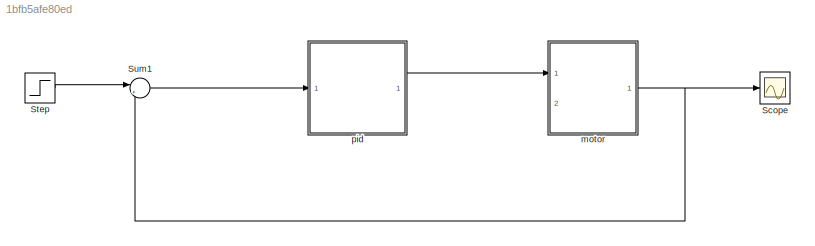
MODEL slx_1bfb5afe80ed
KIND model
CONFIG AbsTol = auto
CONFIG EnableMultiTasking = off
CONFIG FixedStep = auto
CONFIG MaxStep = auto
CONFIG MinStep = auto
CONFIG RelTol = 1e-3
CONFIG SampleTimeConstraint = Unconstrained
CONFIG SolverName = VariableStepAuto
CONFIG StartTime = 0.0
CONFIG StopTime = 10.0
WORKSPACE source: mxarray member
WORKSPACE J = 3.2284e-06
WORKSPACE K = 0.0274
WORKSPACE Kd = 0.04
WORKSPACE Ki = 47.4
WORKSPACE Kp = 3.4
WORKSPACE L = 2.75e-06
WORKSPACE R = 4
WORKSPACE b = 3.5077e-06
BLOCK [Scope] Scope
  Floating = off
  NumInputPorts = 1
  Ports = [1]
  ScopeSpecificationString = Simulink.scopes.TimeScopeBlockCfg('CurrentConfiguration', extmgr.ConfigurationSet(extmgr.Configuration('Core','General UI',true),extmgr.Configuration('Core','Source UI',true),extmgr.Configuration('Sources','WiredSimulink',true),extmgr.Configuration('Visuals','Time Domain',true,'SerializedDisplays',{struct('MinYLimReal','-0.1498','MaxYLimReal','1.34823','YLabelReal','','MinYLimMag','0.00000','MaxYL...<+1349ch>
BLOCK [Step] Step
  SampleTime = 0
BLOCK [Sum] Sum1
  Inputs = |+-
  Ports = [2, 1]
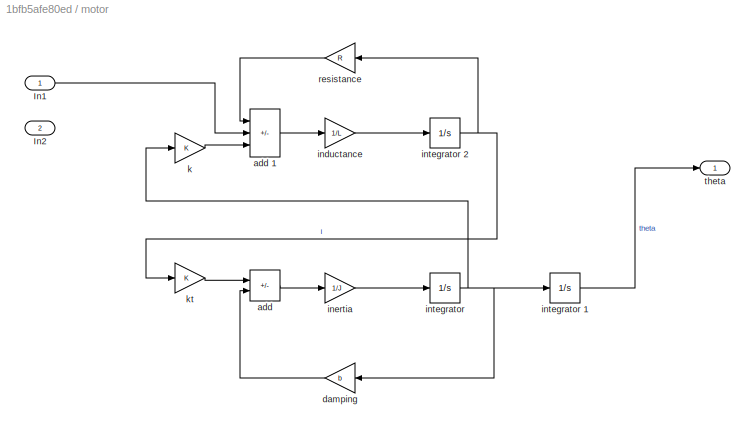
BLOCK [SubSystem] motor
  PortSchema = {"entries":[{"content":{"sides":[{"content":{"connectorIds":["In1"]},"type":"ConnectorPlacement.EquallySpacedRectSide","uuid":"46e5e078-8acc-460b-9834-0cb8e11352dd"},{"content":{"connectorIds":["Out1"],"side":"RIGHT"},"type":"ConnectorPlacement.EquallySpacedRectSide","uuid":"b6dce6b5-a511-48e5-b187-f6c22f4942bf"},{"content":{"connectorIds":["In2"],"side":"TOP"},"type":"ConnectorPlacement.EquallySp...<+389ch>
  Ports = [2, 1]
  RequestExecContextInheritance = off
BLOCK [Inport] motor/In1
BLOCK [Inport] motor/In2
  Port = 2
BLOCK [Sum] motor/add
  IconShape = rectangular
  Inputs = +-
  Ports = [2, 1]
BLOCK [Sum] motor/add 1
  IconShape = rectangular
  Inputs = -+-
  Ports = [3, 1]
BLOCK [Gain] motor/damping
  Gain = b
BLOCK [Gain] motor/inductance
  Gain = 1/L
BLOCK [Gain] motor/inertia
  Gain = 1/J
BLOCK [Integrator] motor/integrator
  Ports = [1, 1]
BLOCK [Integrator] motor/integrator 1
  Ports = [1, 1]
BLOCK [Integrator] motor/integrator 2
  Ports = [1, 1]
BLOCK [Gain] motor/k
  Gain = K
BLOCK [Gain] motor/kt
  Gain = K
BLOCK [Gain] motor/resistance
  Gain = R
  NameLocation = top
BLOCK [Outport] motor/theta
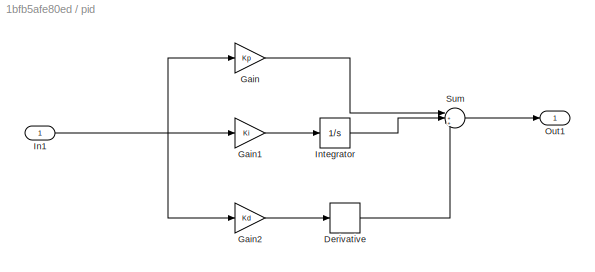
BLOCK [SubSystem] pid
  Ports = [1, 1]
  RequestExecContextInheritance = off
BLOCK [Derivative] pid/Derivative
BLOCK [Gain] pid/Gain
  Gain = Kp
BLOCK [Gain] pid/Gain1
  Gain = Ki
BLOCK [Gain] pid/Gain2
  Gain = Kd
BLOCK [Inport] pid/In1
BLOCK [Integrator] pid/Integrator
  Ports = [1, 1]
BLOCK [Outport] pid/Out1
BLOCK [Sum] pid/Sum
  Inputs = |+++
  Ports = [3, 1]
LINE Step:1 -> Sum1:1
LINE Sum1:1 -> pid:1
LINE motor/In1:1 -> motor/add 1:2
LINE motor/add 1:1 -> motor/inductance:1
LINE motor/add:1 -> motor/inertia:1
LINE motor/damping:1 -> motor/add:2
LINE motor/inductance:1 -> motor/integrator 2:1
LINE motor/inertia:1 -> motor/integrator:1
LINE motor/integrator 1:1 -> motor/theta:1
NET motor/integrator 2:1 -> motor/kt:1, motor/resistance:1
NET motor/integrator:1 -> motor/damping:1, motor/integrator 1:1, motor/k:1
LINE motor/k:1 -> motor/add 1:3
LINE motor/kt:1 -> motor/add:1
LINE motor/resistance:1 -> motor/add 1:1
NET motor:1 -> Scope:1, Sum1:2
LINE pid/Derivative:1 -> pid/Sum:3
LINE pid/Gain1:1 -> pid/Integrator:1
LINE pid/Gain2:1 -> pid/Derivative:1
LINE pid/Gain:1 -> pid/Sum:1
NET pid/In1:1 -> pid/Gain1:1, pid/Gain2:1, pid/Gain:1
LINE pid/Integrator:1 -> pid/Sum:2
LINE pid/Sum:1 -> pid/Out1:1
LINE pid:1 -> motor:1
note: NET lines group one-source signal fan-out (src -> all destinations, sorted); 1:1 wires keep LINE
